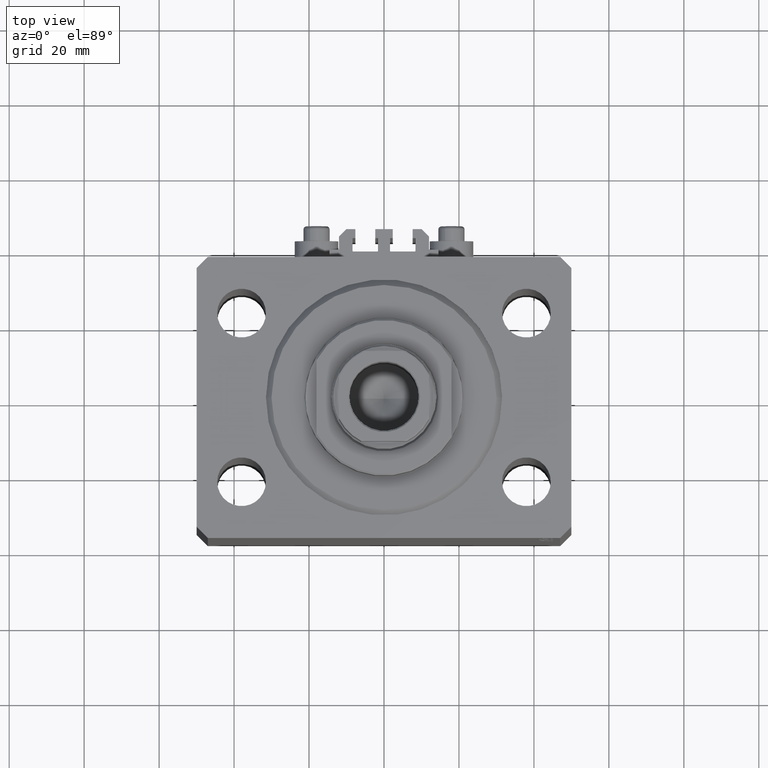
[diagram: clean part render]
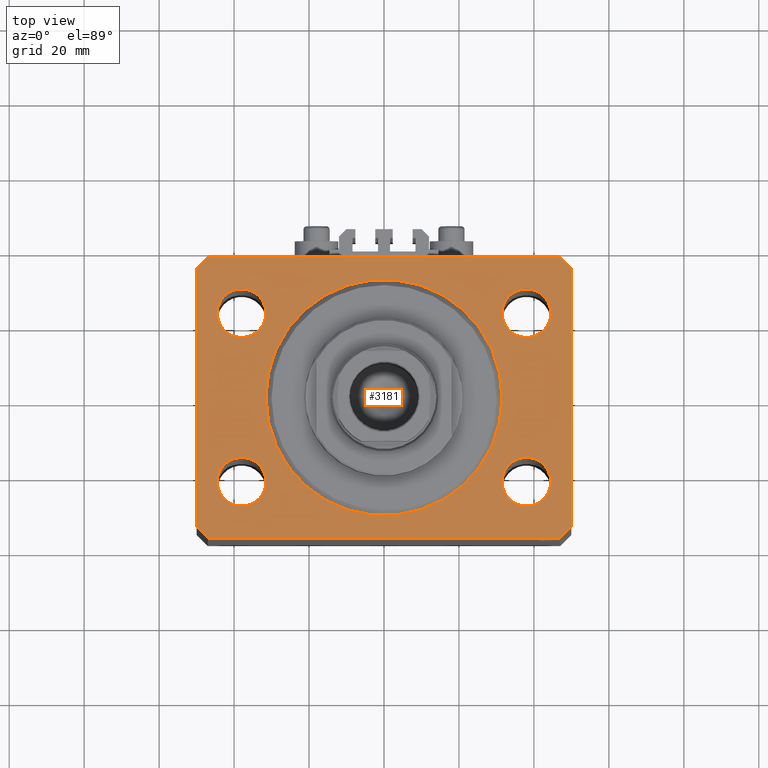
[diagram: same view with one face highlighted and labeled with its STEP entity id]
A machine part, top view. The second image highlights one B-rep face of the part: STEP entity #3181.
In plain terms, the highlighted planar face has unit normal (0, 0, 1).
Its self-contained STEP definition (entity closure, byte-faithful):
#54 = CARTESIAN_POINT ( 'NONE',  ( -38.00000000000000000, 22.49999999999999645, 0.000000000000000000 ) ) ;
#74 = LINE ( 'NONE', #44092, #21297 ) ;
#121 = FACE_OUTER_BOUND ( 'NONE', #5845, .T. ) ;
#243 = AXIS2_PLACEMENT_3D ( 'NONE', #29086, #43674, #10894 ) ;
#1004 = VERTEX_POINT ( 'NONE', #27867 ) ;
#1232 = ORIENTED_EDGE ( 'NONE', *, *, #30870, .F. ) ;
#1367 = DIRECTION ( 'NONE',  ( 0.7071067811865483499, 0.7071067811865466846, 0.000000000000000000 ) ) ;
#1790 = VERTEX_POINT ( 'NONE', #14085 ) ;
#1866 = DIRECTION ( 'NONE',  ( 0.000000000000000000, 0.000000000000000000, 1.000000000000000000 ) ) ;
#2003 = CIRCLE ( 'NONE', #28762, 6.499999999999999112 ) ;
#2643 = EDGE_CURVE ( 'NONE', #9353, #25902, #20894, .T. ) ;
#3068 = DIRECTION ( 'NONE',  ( 0.000000000000000000, 0.000000000000000000, 1.000000000000000000 ) ) ;
#3181 = ADVANCED_FACE ( 'NONE', ( #44374, #11599, #26183, #32454, #32697, #121 ), #47279, .T. ) ;
#3694 = EDGE_CURVE ( 'NONE', #40579, #21914, #37578, .T. ) ;
#3700 = DIRECTION ( 'NONE',  ( 1.000000000000000000, 0.000000000000000000, 0.000000000000000000 ) ) ;
#4771 = CARTESIAN_POINT ( 'NONE',  ( -50.00000000000001421, 34.50000000000000000, 0.000000000000000000 ) ) ;
#5026 = CARTESIAN_POINT ( 'NONE',  ( -50.00000000000000000, -34.50000000000000000, 0.000000000000000000 ) ) ;
#5224 = EDGE_CURVE ( 'NONE', #25902, #9353, #17165, .T. ) ;
#5565 = ORIENTED_EDGE ( 'NONE', *, *, #13582, .F. ) ;
#5670 = CARTESIAN_POINT ( 'NONE',  ( 47.00000000000000000, -37.50000000000000711, 0.000000000000000000 ) ) ;
#5845 = EDGE_LOOP ( 'NONE', ( #38590, #14216, #16828, #33239, #21799, #33260, #34064, #38558 ) ) ;
#6449 = VERTEX_POINT ( 'NONE', #42340 ) ;
#6859 = EDGE_CURVE ( 'NONE', #21914, #10866, #22142, .T. ) ;
#6944 = ORIENTED_EDGE ( 'NONE', *, *, #6973, .F. ) ;
#6953 = CARTESIAN_POINT ( 'NONE',  ( -37.99999999999999289, -22.50000000000000000, 0.000000000000000000 ) ) ;
#6973 = EDGE_CURVE ( 'NONE', #40548, #38504, #39375, .T. ) ;
#7289 = DIRECTION ( 'NONE',  ( 0.000000000000000000, 0.000000000000000000, 1.000000000000000000 ) ) ;
#7781 = ORIENTED_EDGE ( 'NONE', *, *, #35665, .F. ) ;
#7945 = DIRECTION ( 'NONE',  ( -0.7071067811865361374, 0.7071067811865588970, 0.000000000000000000 ) ) ;
#8472 = ORIENTED_EDGE ( 'NONE', *, *, #17685, .F. ) ;
#8512 = EDGE_CURVE ( 'NONE', #15333, #16430, #26362, .T. ) ;
#9353 = VERTEX_POINT ( 'NONE', #21716 ) ;
#9548 = DIRECTION ( 'NONE',  ( 1.000000000000000000, 0.000000000000000000, 0.000000000000000000 ) ) ;
#10628 = CARTESIAN_POINT ( 'NONE',  ( 31.49999999999999289, -22.50000000000000000, 0.000000000000000000 ) ) ;
#10645 = DIRECTION ( 'NONE',  ( 1.000000000000000000, -1.476360405086644309E-16, 0.000000000000000000 ) ) ;
#10866 = VERTEX_POINT ( 'NONE', #32588 ) ;
#10894 = DIRECTION ( 'NONE',  ( 1.000000000000000000, 0.000000000000000000, -0.000000000000000000 ) ) ;
#10935 = AXIS2_PLACEMENT_3D ( 'NONE', #28447, #3068, #9548 ) ;
#11599 = FACE_BOUND ( 'NONE', #24018, .T. ) ;
#12034 = VERTEX_POINT ( 'NONE', #26630 ) ;
#12799 = AXIS2_PLACEMENT_3D ( 'NONE', #54, #36443, #22059 ) ;
#12824 = DIRECTION ( 'NONE',  ( 1.000000000000000000, 0.000000000000000000, 0.000000000000000000 ) ) ;
#13210 = DIRECTION ( 'NONE',  ( 0.000000000000000000, 0.000000000000000000, 1.000000000000000000 ) ) ;
#13320 = EDGE_CURVE ( 'NONE', #39663, #6449, #27115, .T. ) ;
#13582 = EDGE_CURVE ( 'NONE', #1790, #12034, #18044, .T. ) ;
#13708 = CARTESIAN_POINT ( 'NONE',  ( -37.99999999999999289, -22.50000000000000000, 0.000000000000000000 ) ) ;
#13730 = EDGE_LOOP ( 'NONE', ( #7781, #6944 ) ) ;
#14085 = CARTESIAN_POINT ( 'NONE',  ( -31.50000000000000000, 22.49999999999999645, 0.000000000000000000 ) ) ;
#14216 = ORIENTED_EDGE ( 'NONE', *, *, #20346, .T. ) ;
#14545 = VECTOR ( 'NONE', #1367, 1000.000000000000000 ) ;
#15181 = EDGE_CURVE ( 'NONE', #36652, #42371, #44254, .T. ) ;
#15315 = DIRECTION ( 'NONE',  ( -1.000000000000000000, 7.381802025433175941E-17, 0.000000000000000000 ) ) ;
#15333 = VERTEX_POINT ( 'NONE', #19852 ) ;
#16200 = VERTEX_POINT ( 'NONE', #5670 ) ;
#16402 = CIRCLE ( 'NONE', #30917, 6.499999999999999112 ) ;
#16430 = VERTEX_POINT ( 'NONE', #10628 ) ;
#16828 = ORIENTED_EDGE ( 'NONE', *, *, #3694, .T. ) ;
#17165 = CIRCLE ( 'NONE', #27855, 6.499999999999999112 ) ;
#17685 = EDGE_CURVE ( 'NONE', #12034, #1790, #26530, .T. ) ;
#18044 = CIRCLE ( 'NONE', #24906, 6.499999999999999112 ) ;
#18214 = VECTOR ( 'NONE', #33215, 1000.000000000000000 ) ;
#19406 = DIRECTION ( 'NONE',  ( 1.000000000000000000, 0.000000000000000000, 0.000000000000000000 ) ) ;
#19462 = DIRECTION ( 'NONE',  ( 7.441712302741091634E-15, 1.000000000000000000, 0.000000000000000000 ) ) ;
#19852 = CARTESIAN_POINT ( 'NONE',  ( 44.49999999999999289, -22.50000000000000000, 0.000000000000000000 ) ) ;
#20138 = DIRECTION ( 'NONE',  ( 1.000000000000000000, 0.000000000000000000, 0.000000000000000000 ) ) ;
#20346 = EDGE_CURVE ( 'NONE', #42371, #40579, #37035, .T. ) ;
#20410 = CARTESIAN_POINT ( 'NONE',  ( 37.99999999999999289, -22.50000000000000000, 0.000000000000000000 ) ) ;
#20502 = EDGE_CURVE ( 'NONE', #6449, #36652, #74, .T. ) ;
#20770 = CARTESIAN_POINT ( 'NONE',  ( -38.00000000000000000, 22.49999999999999645, 0.000000000000000000 ) ) ;
#20894 = CIRCLE ( 'NONE', #10935, 6.499999999999999112 ) ;
#21126 = VECTOR ( 'NONE', #15315, 1000.000000000000000 ) ;
#21297 = VECTOR ( 'NONE', #7945, 1000.000000000000114 ) ;
#21362 = ORIENTED_EDGE ( 'NONE', *, *, #5224, .F. ) ;
#21547 = CARTESIAN_POINT ( 'NONE',  ( 31.50000000000000000, 22.49999999999998934, 0.000000000000000000 ) ) ;
#21716 = CARTESIAN_POINT ( 'NONE',  ( 44.50000000000000000, 22.49999999999998934, 0.000000000000000000 ) ) ;
#21799 = ORIENTED_EDGE ( 'NONE', *, *, #25608, .T. ) ;
#21914 = VERTEX_POINT ( 'NONE', #5026 ) ;
#22059 = DIRECTION ( 'NONE',  ( 1.000000000000000000, 0.000000000000000000, 0.000000000000000000 ) ) ;
#22142 = LINE ( 'NONE', #44390, #33250 ) ;
#22333 = CARTESIAN_POINT ( 'NONE',  ( -47.00000000000000000, -37.49999999999999289, 0.000000000000000000 ) ) ;
#23571 = DIRECTION ( 'NONE',  ( 0.000000000000000000, 0.000000000000000000, 1.000000000000000000 ) ) ;
#23645 = CARTESIAN_POINT ( 'NONE',  ( 0.000000000000000000, 0.000000000000000000, 0.000000000000000000 ) ) ;
#24018 = EDGE_LOOP ( 'NONE', ( #47154, #41012 ) ) ;
#24077 = LINE ( 'NONE', #38454, #14545 ) ;
#24119 = ORIENTED_EDGE ( 'NONE', *, *, #8512, .F. ) ;
#24858 = CIRCLE ( 'NONE', #43200, 6.499999999999999112 ) ;
#24906 = AXIS2_PLACEMENT_3D ( 'NONE', #20770, #34260, #19406 ) ;
#24908 = DIRECTION ( 'NONE',  ( 0.000000000000000000, 0.000000000000000000, 1.000000000000000000 ) ) ;
#25382 = DIRECTION ( 'NONE',  ( 1.000000000000000000, 0.000000000000000000, 0.000000000000000000 ) ) ;
#25608 = EDGE_CURVE ( 'NONE', #10866, #16200, #32904, .T. ) ;
#25902 = VERTEX_POINT ( 'NONE', #21547 ) ;
#26183 = FACE_BOUND ( 'NONE', #42868, .T. ) ;
#26362 = CIRCLE ( 'NONE', #40868, 6.499999999999999112 ) ;
#26530 = CIRCLE ( 'NONE', #12799, 6.499999999999999112 ) ;
#26630 = CARTESIAN_POINT ( 'NONE',  ( -44.50000000000000000, 22.49999999999999645, 0.000000000000000000 ) ) ;
#26924 = CARTESIAN_POINT ( 'NONE',  ( 0.000000000000000000, 0.000000000000000000, 0.000000000000000000 ) ) ;
#27115 = LINE ( 'NONE', #38845, #34836 ) ;
#27667 = VECTOR ( 'NONE', #10645, 1000.000000000000000 ) ;
#27757 = EDGE_CURVE ( 'NONE', #1004, #28007, #16402, .T. ) ;
#27855 = AXIS2_PLACEMENT_3D ( 'NONE', #38341, #13210, #20138 ) ;
#27867 = CARTESIAN_POINT ( 'NONE',  ( -31.49999999999999289, -22.50000000000000000, 0.000000000000000000 ) ) ;
#28007 = VERTEX_POINT ( 'NONE', #36342 ) ;
#28447 = CARTESIAN_POINT ( 'NONE',  ( 38.00000000000000000, 22.49999999999998934, 0.000000000000000000 ) ) ;
#28762 = AXIS2_PLACEMENT_3D ( 'NONE', #13708, #36810, #43748 ) ;
#29086 = CARTESIAN_POINT ( 'NONE',  ( 0.000000000000000000, 0.000000000000000000, 0.000000000000000000 ) ) ;
#30093 = CARTESIAN_POINT ( 'NONE',  ( -47.00000000000001421, 37.50000000000000000, 0.000000000000000000 ) ) ;
#30728 = DIRECTION ( 'NONE',  ( 0.000000000000000000, 0.000000000000000000, 1.000000000000000000 ) ) ;
#30870 = EDGE_CURVE ( 'NONE', #16430, #15333, #24858, .T. ) ;
#30917 = AXIS2_PLACEMENT_3D ( 'NONE', #6953, #24908, #25382 ) ;
#31117 = AXIS2_PLACEMENT_3D ( 'NONE', #23645, #1866, #41586 ) ;
#31698 = CARTESIAN_POINT ( 'NONE',  ( 47.00000000000056843, 37.49999999999999289, 0.000000000000000000 ) ) ;
#32454 = FACE_BOUND ( 'NONE', #37167, .T. ) ;
#32479 = AXIS2_PLACEMENT_3D ( 'NONE', #26924, #23571, #12824 ) ;
#32588 = CARTESIAN_POINT ( 'NONE',  ( -47.00000000000000000, -37.49999999999999289, 0.000000000000000000 ) ) ;
#32697 = FACE_BOUND ( 'NONE', #34343, .T. ) ;
#32904 = LINE ( 'NONE', #22333, #27667 ) ;
#33215 = DIRECTION ( 'NONE',  ( -0.7071067811865483499, -0.7071067811865466846, 0.000000000000000000 ) ) ;
#33239 = ORIENTED_EDGE ( 'NONE', *, *, #6859, .T. ) ;
#33250 = VECTOR ( 'NONE', #33640, 1000.000000000000114 ) ;
#33260 = ORIENTED_EDGE ( 'NONE', *, *, #46452, .T. ) ;
#33494 = EDGE_CURVE ( 'NONE', #28007, #1004, #2003, .T. ) ;
#33640 = DIRECTION ( 'NONE',  ( 0.7071067811865491270, -0.7071067811865459074, 0.000000000000000000 ) ) ;
#34064 = ORIENTED_EDGE ( 'NONE', *, *, #13320, .T. ) ;
#34260 = DIRECTION ( 'NONE',  ( 0.000000000000000000, 0.000000000000000000, 1.000000000000000000 ) ) ;
#34343 = EDGE_LOOP ( 'NONE', ( #5565, #8472 ) ) ;
#34836 = VECTOR ( 'NONE', #19462, 1000.000000000000000 ) ;
#35665 = EDGE_CURVE ( 'NONE', #38504, #40548, #47173, .T. ) ;
#36342 = CARTESIAN_POINT ( 'NONE',  ( -44.49999999999999289, -22.50000000000000000, 0.000000000000000000 ) ) ;
#36443 = DIRECTION ( 'NONE',  ( 0.000000000000000000, 0.000000000000000000, 1.000000000000000000 ) ) ;
#36508 = CARTESIAN_POINT ( 'NONE',  ( 37.99999999999999289, -22.50000000000000000, 0.000000000000000000 ) ) ;
#36652 = VERTEX_POINT ( 'NONE', #31698 ) ;
#36810 = DIRECTION ( 'NONE',  ( 0.000000000000000000, 0.000000000000000000, 1.000000000000000000 ) ) ;
#37035 = LINE ( 'NONE', #30093, #18214 ) ;
#37167 = EDGE_LOOP ( 'NONE', ( #40285, #21362 ) ) ;
#37578 = LINE ( 'NONE', #4771, #39242 ) ;
#38341 = CARTESIAN_POINT ( 'NONE',  ( 38.00000000000000000, 22.49999999999998934, 0.000000000000000000 ) ) ;
#38454 = CARTESIAN_POINT ( 'NONE',  ( 47.00000000000000000, -37.50000000000000711, 0.000000000000000000 ) ) ;
#38504 = VERTEX_POINT ( 'NONE', #42425 ) ;
#38558 = ORIENTED_EDGE ( 'NONE', *, *, #20502, .T. ) ;
#38590 = ORIENTED_EDGE ( 'NONE', *, *, #15181, .T. ) ;
#38845 = CARTESIAN_POINT ( 'NONE',  ( 50.00000000000000000, -34.50000000000000711, 0.000000000000000000 ) ) ;
#39242 = VECTOR ( 'NONE', #44261, 1000.000000000000000 ) ;
#39375 = CIRCLE ( 'NONE', #32479, 31.50000000000000000 ) ;
#39663 = VERTEX_POINT ( 'NONE', #40324 ) ;
#40285 = ORIENTED_EDGE ( 'NONE', *, *, #2643, .F. ) ;
#40324 = CARTESIAN_POINT ( 'NONE',  ( 50.00000000000000000, -34.50000000000000711, 0.000000000000000000 ) ) ;
#40390 = CARTESIAN_POINT ( 'NONE',  ( -31.50000000000000000, 3.857637417314162689E-15, 0.000000000000000000 ) ) ;
#40548 = VERTEX_POINT ( 'NONE', #40390 ) ;
#40579 = VERTEX_POINT ( 'NONE', #44693 ) ;
#40868 = AXIS2_PLACEMENT_3D ( 'NONE', #20410, #30728, #45313 ) ;
#41012 = ORIENTED_EDGE ( 'NONE', *, *, #33494, .F. ) ;
#41586 = DIRECTION ( 'NONE',  ( 1.000000000000000000, 0.000000000000000000, 0.000000000000000000 ) ) ;
#42340 = CARTESIAN_POINT ( 'NONE',  ( 50.00000000000051870, 34.49999999999995026, 0.000000000000000000 ) ) ;
#42371 = VERTEX_POINT ( 'NONE', #42988 ) ;
#42425 = CARTESIAN_POINT ( 'NONE',  ( 31.50000000000000000, 0.000000000000000000, 0.000000000000000000 ) ) ;
#42868 = EDGE_LOOP ( 'NONE', ( #24119, #1232 ) ) ;
#42988 = CARTESIAN_POINT ( 'NONE',  ( -47.00000000000001421, 37.50000000000000000, 0.000000000000000000 ) ) ;
#43200 = AXIS2_PLACEMENT_3D ( 'NONE', #36508, #7289, #3700 ) ;
#43674 = DIRECTION ( 'NONE',  ( 0.000000000000000000, 0.000000000000000000, 1.000000000000000000 ) ) ;
#43748 = DIRECTION ( 'NONE',  ( 1.000000000000000000, 0.000000000000000000, 0.000000000000000000 ) ) ;
#44092 = CARTESIAN_POINT ( 'NONE',  ( 50.00000000000051870, 34.49999999999995026, 0.000000000000000000 ) ) ;
#44254 = LINE ( 'NONE', #44726, #21126 ) ;
#44261 = DIRECTION ( 'NONE',  ( 2.011273595335428326E-16, -1.000000000000000000, 0.000000000000000000 ) ) ;
#44374 = FACE_BOUND ( 'NONE', #13730, .T. ) ;
#44390 = CARTESIAN_POINT ( 'NONE',  ( -50.00000000000000000, -34.50000000000000000, 0.000000000000000000 ) ) ;
#44693 = CARTESIAN_POINT ( 'NONE',  ( -50.00000000000001421, 34.50000000000000000, 0.000000000000000000 ) ) ;
#44726 = CARTESIAN_POINT ( 'NONE',  ( 47.00000000000056843, 37.49999999999999289, 0.000000000000000000 ) ) ;
#45313 = DIRECTION ( 'NONE',  ( 1.000000000000000000, 0.000000000000000000, 0.000000000000000000 ) ) ;
#46452 = EDGE_CURVE ( 'NONE', #16200, #39663, #24077, .T. ) ;
#47154 = ORIENTED_EDGE ( 'NONE', *, *, #27757, .F. ) ;
#47173 = CIRCLE ( 'NONE', #31117, 31.50000000000000000 ) ;
#47279 = PLANE ( 'NONE',  #243 ) ;